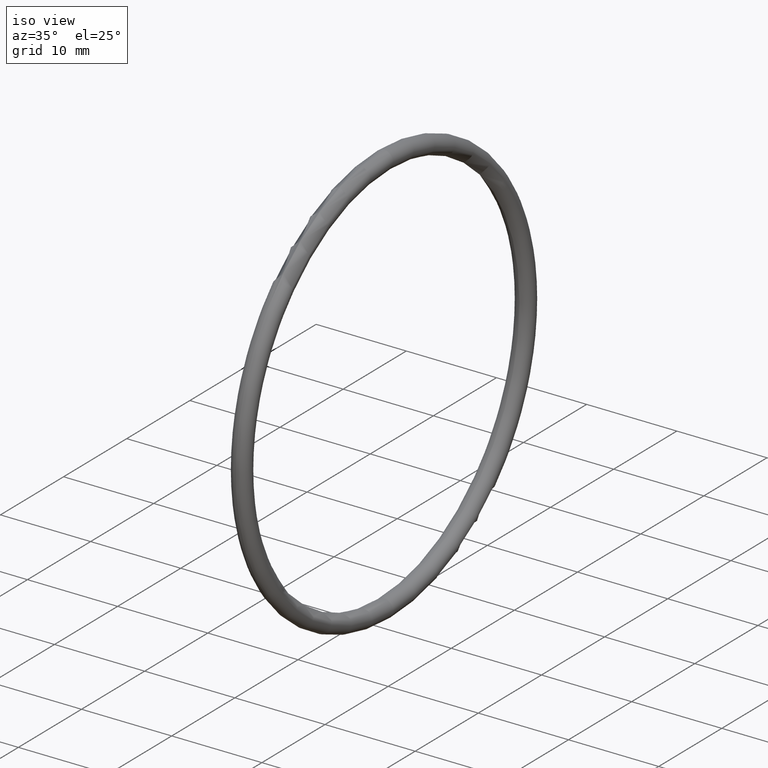
[diagram: clean part render]
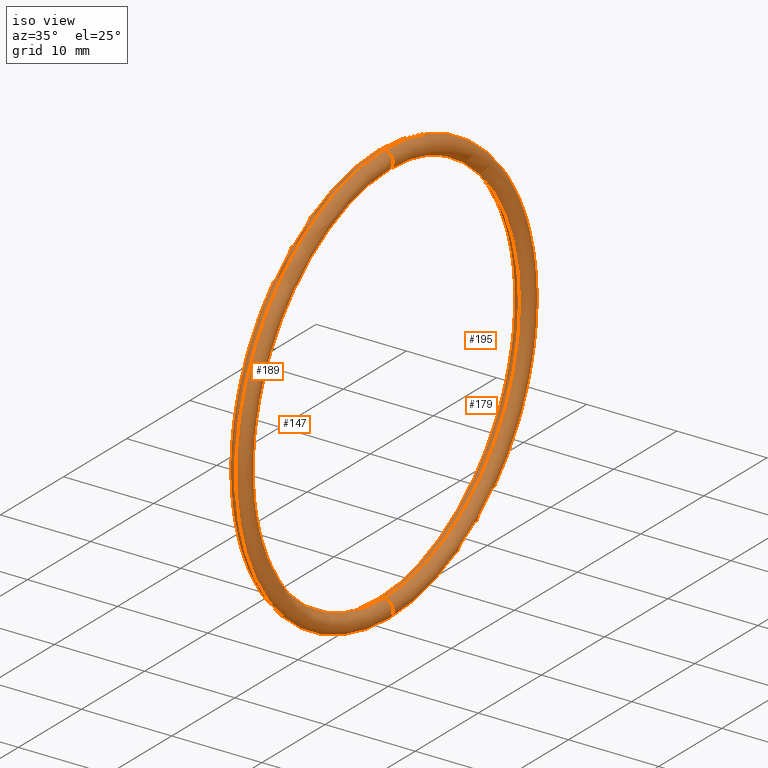
[diagram: same view with one multi-face feature highlighted, each face labeled with its STEP entity id]
A machine part, iso view. The highlighted faces form ONE feature: a constant-radius fillet chain: 4 tangent blend faces with common blend radius 1.016 mm. The faces share edges in the B-rep.
Their STEP definitions:
[1] entity #147 (Torus):
#6 = DIRECTION ( 'NONE',  ( -1.000000000000000000, 0.0000000000000000000, 0.0000000000000000000 ) ) ;
#7 = CARTESIAN_POINT ( 'NONE',  ( 0.1000000000000001300, 0.0000000000000000000, 0.0000000000000000000 ) ) ;
#8 = AXIS2_PLACEMENT_3D ( 'NONE', #7, #6, #9 ) ;
#9 = DIRECTION ( 'NONE',  ( 0.0000000000000000000, 0.0000000000000000000, 1.000000000000000000 ) ) ;
#10 = CARTESIAN_POINT ( 'NONE',  ( 0.1000000000000001300, 0.0000000000000000000, 0.8449999999999999700 ) ) ;
#11 = CARTESIAN_POINT ( 'NONE',  ( 0.1000000000000001300, 0.0000000000000000000, 0.9249999999999999300 ) ) ;
#12 = CIRCLE ( 'NONE', #17, 0.8449999999999999700 ) ;
#13 = DIRECTION ( 'NONE',  ( 0.0000000000000000000, 0.0000000000000000000, 1.000000000000000000 ) ) ;
#14 = CARTESIAN_POINT ( 'NONE',  ( 0.1000000000000001300, 0.0000000000000000000, 0.0000000000000000000 ) ) ;
#16 = DIRECTION ( 'NONE',  ( -1.000000000000000000, 0.0000000000000000000, 0.0000000000000000000 ) ) ;
#17 = AXIS2_PLACEMENT_3D ( 'NONE', #14, #16, #13 ) ;
#55 = CARTESIAN_POINT ( 'NONE',  ( 0.1000000000000001300, 1.034826545279513500E-016, -0.8449999999999999700 ) ) ;
#56 = CARTESIAN_POINT ( 'NONE',  ( 0.1000000000000001300, 1.132798289211301800E-016, -0.9249999999999999300 ) ) ;
#143 = EDGE_CURVE ( 'NONE', #157, #156, #174, .T. ) ;
#146 = EDGE_CURVE ( 'NONE', #194, #193, #169, .T. ) ;
#147 = ADVANCED_FACE ( 'NONE', ( #164 ), #163, .T. ) ;
#148 = EDGE_LOOP ( 'NONE', ( #149, #150, #151, #152 ) ) ;
#149 = ORIENTED_EDGE ( 'NONE', *, *, #155, .F. ) ;
#150 = ORIENTED_EDGE ( 'NONE', *, *, #146, .F. ) ;
#151 = ORIENTED_EDGE ( 'NONE', *, *, #178, .T. ) ;
#152 = ORIENTED_EDGE ( 'NONE', *, *, #143, .T. ) ;
#155 = EDGE_CURVE ( 'NONE', #193, #156, #158, .T. ) ;
#156 = VERTEX_POINT ( 'NONE', #11 ) ;
#157 = VERTEX_POINT ( 'NONE', #10 ) ;
#158 = CIRCLE ( 'NONE', #8, 0.9249999999999999300 ) ;
#159 = DIRECTION ( 'NONE',  ( 0.0000000000000000000, 0.0000000000000000000, 1.000000000000000000 ) ) ;
#160 = DIRECTION ( 'NONE',  ( -1.000000000000000000, 0.0000000000000000000, 0.0000000000000000000 ) ) ;
#161 = CARTESIAN_POINT ( 'NONE',  ( 0.1000000000000001300, 0.0000000000000000000, 0.0000000000000000000 ) ) ;
#162 = AXIS2_PLACEMENT_3D ( 'NONE', #161, #160, #159 ) ;
#163 = TOROIDAL_SURFACE ( 'NONE', #162, 0.8850000000000000100, 0.03999999999999997300 ) ;
#164 = FACE_OUTER_BOUND ( 'NONE', #148, .T. ) ;
#165 = DIRECTION ( 'NONE',  ( 0.0000000000000000000, -1.224646799147354900E-016, 1.000000000000000000 ) ) ;
#166 = DIRECTION ( 'NONE',  ( 0.0000000000000000000, 1.000000000000000000, 1.224646799147353200E-016 ) ) ;
#167 = CARTESIAN_POINT ( 'NONE',  ( 0.1000000000000001300, 1.083812417245407700E-016, -0.8850000000000000100 ) ) ;
#168 = AXIS2_PLACEMENT_3D ( 'NONE', #167, #166, #165 ) ;
#169 = CIRCLE ( 'NONE', #168, 0.03999999999999998000 ) ;
#170 = DIRECTION ( 'NONE',  ( 0.0000000000000000000, 0.0000000000000000000, -1.000000000000000000 ) ) ;
#171 = DIRECTION ( 'NONE',  ( 0.0000000000000000000, -1.000000000000000000, 0.0000000000000000000 ) ) ;
#172 = CARTESIAN_POINT ( 'NONE',  ( 0.1000000000000001300, 0.0000000000000000000, 0.8850000000000000100 ) ) ;
#173 = AXIS2_PLACEMENT_3D ( 'NONE', #172, #171, #170 ) ;
#174 = CIRCLE ( 'NONE', #173, 0.03999999999999998000 ) ;
#178 = EDGE_CURVE ( 'NONE', #194, #157, #12, .T. ) ;
#193 = VERTEX_POINT ( 'NONE', #56 ) ;
#194 = VERTEX_POINT ( 'NONE', #55 ) ;
[2] entity #195 (Torus):
#10 = CARTESIAN_POINT ( 'NONE',  ( 0.1000000000000001300, 0.0000000000000000000, 0.8449999999999999700 ) ) ;
#11 = CARTESIAN_POINT ( 'NONE',  ( 0.1000000000000001300, 0.0000000000000000000, 0.9249999999999999300 ) ) ;
#21 = AXIS2_PLACEMENT_3D ( 'NONE', #22, #24, #23 ) ;
#22 = CARTESIAN_POINT ( 'NONE',  ( 0.1000000000000001300, 0.0000000000000000000, 0.0000000000000000000 ) ) ;
#23 = DIRECTION ( 'NONE',  ( 0.0000000000000000000, 0.0000000000000000000, 1.000000000000000000 ) ) ;
#24 = DIRECTION ( 'NONE',  ( -1.000000000000000000, 0.0000000000000000000, 0.0000000000000000000 ) ) ;
#36 = AXIS2_PLACEMENT_3D ( 'NONE', #38, #37, #46 ) ;
#37 = DIRECTION ( 'NONE',  ( -1.000000000000000000, 0.0000000000000000000, 0.0000000000000000000 ) ) ;
#38 = CARTESIAN_POINT ( 'NONE',  ( 0.1000000000000001300, 0.0000000000000000000, 0.0000000000000000000 ) ) ;
#39 = AXIS2_PLACEMENT_3D ( 'NONE', #44, #43, #42 ) ;
#40 = CIRCLE ( 'NONE', #39, 0.8449999999999999700 ) ;
#41 = CIRCLE ( 'NONE', #36, 0.9249999999999999300 ) ;
#42 = DIRECTION ( 'NONE',  ( 0.0000000000000000000, 0.0000000000000000000, 1.000000000000000000 ) ) ;
#43 = DIRECTION ( 'NONE',  ( -1.000000000000000000, 0.0000000000000000000, 0.0000000000000000000 ) ) ;
#44 = CARTESIAN_POINT ( 'NONE',  ( 0.1000000000000001300, 0.0000000000000000000, 0.0000000000000000000 ) ) ;
#46 = DIRECTION ( 'NONE',  ( 0.0000000000000000000, 0.0000000000000000000, 1.000000000000000000 ) ) ;
#53 = TOROIDAL_SURFACE ( 'NONE', #21, 0.8850000000000000100, 0.03999999999999997300 ) ;
#54 = FACE_OUTER_BOUND ( 'NONE', #187, .T. ) ;
#55 = CARTESIAN_POINT ( 'NONE',  ( 0.1000000000000001300, 1.034826545279513500E-016, -0.8449999999999999700 ) ) ;
#56 = CARTESIAN_POINT ( 'NONE',  ( 0.1000000000000001300, 1.132798289211301800E-016, -0.9249999999999999300 ) ) ;
#142 = ORIENTED_EDGE ( 'NONE', *, *, #143, .F. ) ;
#143 = EDGE_CURVE ( 'NONE', #157, #156, #174, .T. ) ;
#144 = ORIENTED_EDGE ( 'NONE', *, *, #186, .T. ) ;
#145 = ORIENTED_EDGE ( 'NONE', *, *, #146, .T. ) ;
#146 = EDGE_CURVE ( 'NONE', #194, #193, #169, .T. ) ;
#156 = VERTEX_POINT ( 'NONE', #11 ) ;
#157 = VERTEX_POINT ( 'NONE', #10 ) ;
#165 = DIRECTION ( 'NONE',  ( 0.0000000000000000000, -1.224646799147354900E-016, 1.000000000000000000 ) ) ;
#166 = DIRECTION ( 'NONE',  ( 0.0000000000000000000, 1.000000000000000000, 1.224646799147353200E-016 ) ) ;
#167 = CARTESIAN_POINT ( 'NONE',  ( 0.1000000000000001300, 1.083812417245407700E-016, -0.8850000000000000100 ) ) ;
#168 = AXIS2_PLACEMENT_3D ( 'NONE', #167, #166, #165 ) ;
#169 = CIRCLE ( 'NONE', #168, 0.03999999999999998000 ) ;
#170 = DIRECTION ( 'NONE',  ( 0.0000000000000000000, 0.0000000000000000000, -1.000000000000000000 ) ) ;
#171 = DIRECTION ( 'NONE',  ( 0.0000000000000000000, -1.000000000000000000, 0.0000000000000000000 ) ) ;
#172 = CARTESIAN_POINT ( 'NONE',  ( 0.1000000000000001300, 0.0000000000000000000, 0.8850000000000000100 ) ) ;
#173 = AXIS2_PLACEMENT_3D ( 'NONE', #172, #171, #170 ) ;
#174 = CIRCLE ( 'NONE', #173, 0.03999999999999998000 ) ;
#183 = EDGE_CURVE ( 'NONE', #156, #193, #41, .T. ) ;
#186 = EDGE_CURVE ( 'NONE', #157, #194, #40, .T. ) ;
#187 = EDGE_LOOP ( 'NONE', ( #196, #142, #144, #145 ) ) ;
#193 = VERTEX_POINT ( 'NONE', #56 ) ;
#194 = VERTEX_POINT ( 'NONE', #55 ) ;
#195 = ADVANCED_FACE ( 'NONE', ( #54 ), #53, .T. ) ;
#196 = ORIENTED_EDGE ( 'NONE', *, *, #183, .F. ) ;
[3] entity #179 (Torus):
#1 = DIRECTION ( 'NONE',  ( 0.0000000000000000000, 0.0000000000000000000, -1.000000000000000000 ) ) ;
#2 = DIRECTION ( 'NONE',  ( 0.0000000000000000000, -1.000000000000000000, 0.0000000000000000000 ) ) ;
#3 = AXIS2_PLACEMENT_3D ( 'NONE', #5, #2, #1 ) ;
#4 = CIRCLE ( 'NONE', #3, 0.03999999999999998000 ) ;
#5 = CARTESIAN_POINT ( 'NONE',  ( 0.1000000000000001300, 0.0000000000000000000, 0.8850000000000000100 ) ) ;
#10 = CARTESIAN_POINT ( 'NONE',  ( 0.1000000000000001300, 0.0000000000000000000, 0.8449999999999999700 ) ) ;
#11 = CARTESIAN_POINT ( 'NONE',  ( 0.1000000000000001300, 0.0000000000000000000, 0.9249999999999999300 ) ) ;
#15 = DIRECTION ( 'NONE',  ( 0.0000000000000000000, 1.000000000000000000, 1.224646799147353200E-016 ) ) ;
#18 = CARTESIAN_POINT ( 'NONE',  ( 0.1000000000000001300, 1.083812417245407700E-016, -0.8850000000000000100 ) ) ;
#19 = DIRECTION ( 'NONE',  ( 0.0000000000000000000, -1.224646799147354900E-016, 1.000000000000000000 ) ) ;
#20 = AXIS2_PLACEMENT_3D ( 'NONE', #18, #15, #19 ) ;
#27 = DIRECTION ( 'NONE',  ( 0.0000000000000000000, 0.0000000000000000000, 1.000000000000000000 ) ) ;
#28 = DIRECTION ( 'NONE',  ( -1.000000000000000000, 0.0000000000000000000, 0.0000000000000000000 ) ) ;
#29 = TOROIDAL_SURFACE ( 'NONE', #33, 0.8850000000000000100, 0.03999999999999997300 ) ;
#31 = FACE_OUTER_BOUND ( 'NONE', #180, .T. ) ;
#32 = CARTESIAN_POINT ( 'NONE',  ( 0.1000000000000001300, 0.0000000000000000000, 0.0000000000000000000 ) ) ;
#33 = AXIS2_PLACEMENT_3D ( 'NONE', #32, #28, #27 ) ;
#36 = AXIS2_PLACEMENT_3D ( 'NONE', #38, #37, #46 ) ;
#37 = DIRECTION ( 'NONE',  ( -1.000000000000000000, 0.0000000000000000000, 0.0000000000000000000 ) ) ;
#38 = CARTESIAN_POINT ( 'NONE',  ( 0.1000000000000001300, 0.0000000000000000000, 0.0000000000000000000 ) ) ;
#39 = AXIS2_PLACEMENT_3D ( 'NONE', #44, #43, #42 ) ;
#40 = CIRCLE ( 'NONE', #39, 0.8449999999999999700 ) ;
#41 = CIRCLE ( 'NONE', #36, 0.9249999999999999300 ) ;
#42 = DIRECTION ( 'NONE',  ( 0.0000000000000000000, 0.0000000000000000000, 1.000000000000000000 ) ) ;
#43 = DIRECTION ( 'NONE',  ( -1.000000000000000000, 0.0000000000000000000, 0.0000000000000000000 ) ) ;
#44 = CARTESIAN_POINT ( 'NONE',  ( 0.1000000000000001300, 0.0000000000000000000, 0.0000000000000000000 ) ) ;
#46 = DIRECTION ( 'NONE',  ( 0.0000000000000000000, 0.0000000000000000000, 1.000000000000000000 ) ) ;
#47 = CIRCLE ( 'NONE', #20, 0.03999999999999998000 ) ;
#55 = CARTESIAN_POINT ( 'NONE',  ( 0.1000000000000001300, 1.034826545279513500E-016, -0.8449999999999999700 ) ) ;
#56 = CARTESIAN_POINT ( 'NONE',  ( 0.1000000000000001300, 1.132798289211301800E-016, -0.9249999999999999300 ) ) ;
#156 = VERTEX_POINT ( 'NONE', #11 ) ;
#157 = VERTEX_POINT ( 'NONE', #10 ) ;
#176 = EDGE_CURVE ( 'NONE', #156, #157, #4, .T. ) ;
#179 = ADVANCED_FACE ( 'NONE', ( #31 ), #29, .T. ) ;
#180 = EDGE_LOOP ( 'NONE', ( #181, #182, #184, #185 ) ) ;
#181 = ORIENTED_EDGE ( 'NONE', *, *, #176, .F. ) ;
#182 = ORIENTED_EDGE ( 'NONE', *, *, #183, .T. ) ;
#183 = EDGE_CURVE ( 'NONE', #156, #193, #41, .T. ) ;
#184 = ORIENTED_EDGE ( 'NONE', *, *, #192, .T. ) ;
#185 = ORIENTED_EDGE ( 'NONE', *, *, #186, .F. ) ;
#186 = EDGE_CURVE ( 'NONE', #157, #194, #40, .T. ) ;
#192 = EDGE_CURVE ( 'NONE', #193, #194, #47, .T. ) ;
#193 = VERTEX_POINT ( 'NONE', #56 ) ;
#194 = VERTEX_POINT ( 'NONE', #55 ) ;
[4] entity #189 (Torus):
#1 = DIRECTION ( 'NONE',  ( 0.0000000000000000000, 0.0000000000000000000, -1.000000000000000000 ) ) ;
#2 = DIRECTION ( 'NONE',  ( 0.0000000000000000000, -1.000000000000000000, 0.0000000000000000000 ) ) ;
#3 = AXIS2_PLACEMENT_3D ( 'NONE', #5, #2, #1 ) ;
#4 = CIRCLE ( 'NONE', #3, 0.03999999999999998000 ) ;
#5 = CARTESIAN_POINT ( 'NONE',  ( 0.1000000000000001300, 0.0000000000000000000, 0.8850000000000000100 ) ) ;
#6 = DIRECTION ( 'NONE',  ( -1.000000000000000000, 0.0000000000000000000, 0.0000000000000000000 ) ) ;
#7 = CARTESIAN_POINT ( 'NONE',  ( 0.1000000000000001300, 0.0000000000000000000, 0.0000000000000000000 ) ) ;
#8 = AXIS2_PLACEMENT_3D ( 'NONE', #7, #6, #9 ) ;
#9 = DIRECTION ( 'NONE',  ( 0.0000000000000000000, 0.0000000000000000000, 1.000000000000000000 ) ) ;
#10 = CARTESIAN_POINT ( 'NONE',  ( 0.1000000000000001300, 0.0000000000000000000, 0.8449999999999999700 ) ) ;
#11 = CARTESIAN_POINT ( 'NONE',  ( 0.1000000000000001300, 0.0000000000000000000, 0.9249999999999999300 ) ) ;
#12 = CIRCLE ( 'NONE', #17, 0.8449999999999999700 ) ;
#13 = DIRECTION ( 'NONE',  ( 0.0000000000000000000, 0.0000000000000000000, 1.000000000000000000 ) ) ;
#14 = CARTESIAN_POINT ( 'NONE',  ( 0.1000000000000001300, 0.0000000000000000000, 0.0000000000000000000 ) ) ;
#15 = DIRECTION ( 'NONE',  ( 0.0000000000000000000, 1.000000000000000000, 1.224646799147353200E-016 ) ) ;
#16 = DIRECTION ( 'NONE',  ( -1.000000000000000000, 0.0000000000000000000, 0.0000000000000000000 ) ) ;
#17 = AXIS2_PLACEMENT_3D ( 'NONE', #14, #16, #13 ) ;
#18 = CARTESIAN_POINT ( 'NONE',  ( 0.1000000000000001300, 1.083812417245407700E-016, -0.8850000000000000100 ) ) ;
#19 = DIRECTION ( 'NONE',  ( 0.0000000000000000000, -1.224646799147354900E-016, 1.000000000000000000 ) ) ;
#20 = AXIS2_PLACEMENT_3D ( 'NONE', #18, #15, #19 ) ;
#45 = FACE_OUTER_BOUND ( 'NONE', #190, .T. ) ;
#47 = CIRCLE ( 'NONE', #20, 0.03999999999999998000 ) ;
#48 = DIRECTION ( 'NONE',  ( 0.0000000000000000000, 0.0000000000000000000, 1.000000000000000000 ) ) ;
#49 = DIRECTION ( 'NONE',  ( -1.000000000000000000, 0.0000000000000000000, 0.0000000000000000000 ) ) ;
#50 = CARTESIAN_POINT ( 'NONE',  ( 0.1000000000000001300, 0.0000000000000000000, 0.0000000000000000000 ) ) ;
#51 = TOROIDAL_SURFACE ( 'NONE', #52, 0.8850000000000000100, 0.03999999999999997300 ) ;
#52 = AXIS2_PLACEMENT_3D ( 'NONE', #50, #49, #48 ) ;
#55 = CARTESIAN_POINT ( 'NONE',  ( 0.1000000000000001300, 1.034826545279513500E-016, -0.8449999999999999700 ) ) ;
#56 = CARTESIAN_POINT ( 'NONE',  ( 0.1000000000000001300, 1.132798289211301800E-016, -0.9249999999999999300 ) ) ;
#154 = ORIENTED_EDGE ( 'NONE', *, *, #155, .T. ) ;
#155 = EDGE_CURVE ( 'NONE', #193, #156, #158, .T. ) ;
#156 = VERTEX_POINT ( 'NONE', #11 ) ;
#157 = VERTEX_POINT ( 'NONE', #10 ) ;
#158 = CIRCLE ( 'NONE', #8, 0.9249999999999999300 ) ;
#175 = ORIENTED_EDGE ( 'NONE', *, *, #176, .T. ) ;
#176 = EDGE_CURVE ( 'NONE', #156, #157, #4, .T. ) ;
#177 = ORIENTED_EDGE ( 'NONE', *, *, #178, .F. ) ;
#178 = EDGE_CURVE ( 'NONE', #194, #157, #12, .T. ) ;
#189 = ADVANCED_FACE ( 'NONE', ( #45 ), #51, .T. ) ;
#190 = EDGE_LOOP ( 'NONE', ( #191, #154, #175, #177 ) ) ;
#191 = ORIENTED_EDGE ( 'NONE', *, *, #192, .F. ) ;
#192 = EDGE_CURVE ( 'NONE', #193, #194, #47, .T. ) ;
#193 = VERTEX_POINT ( 'NONE', #56 ) ;
#194 = VERTEX_POINT ( 'NONE', #55 ) ;